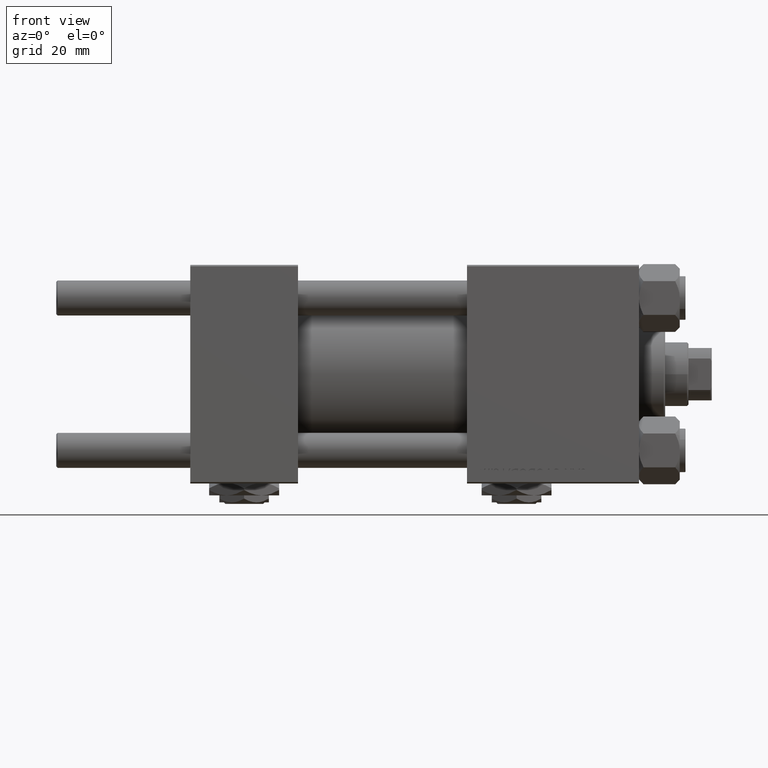
[diagram: clean part render]
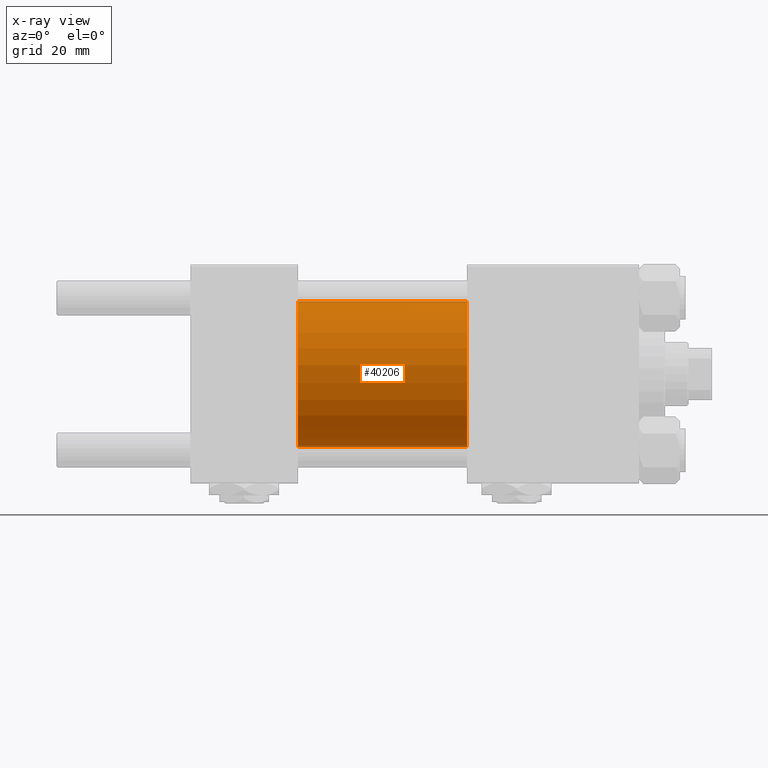
[diagram: x-ray — body ghosted, one internal face saturated and labeled with its STEP entity id]
A machine part, front view, then the same camera in x-ray: the body is ghosted and one INTERNAL B-rep face — a face not visible from any outside direction — is saturated and labeled: STEP entity #40206.
In plain terms, the highlighted cylindrical surface (partial cylindrical patch) has radius 25 mm, axis along (-1, -0, -0).
Its self-contained STEP definition (entity closure, byte-faithful):
#2427 = EDGE_LOOP ( 'NONE', ( #40522, #5990, #18954, #51434 ) ) ;
#5990 = ORIENTED_EDGE ( 'NONE', *, *, #7460, .T. ) ;
#6625 = CARTESIAN_POINT ( 'NONE',  ( 95.00000000000000000, 0.000000000000000000, 25.00000000000000000 ) ) ;
#6922 = CIRCLE ( 'NONE', #44581, 25.00000000000000000 ) ;
#7460 = EDGE_CURVE ( 'NONE', #30177, #29474, #15472, .T. ) ;
#7726 = CARTESIAN_POINT ( 'NONE',  ( 95.00000000000000000, 3.061616997868382254E-15, -25.00000000000000000 ) ) ;
#9707 = DIRECTION ( 'NONE',  ( -1.000000000000000000, -0.000000000000000000, -0.000000000000000000 ) ) ;
#11734 = DIRECTION ( 'NONE',  ( 0.000000000000000000, 0.000000000000000000, -1.000000000000000000 ) ) ;
#11901 = VERTEX_POINT ( 'NONE', #6625 ) ;
#12395 = DIRECTION ( 'NONE',  ( 0.000000000000000000, 0.000000000000000000, 1.000000000000000000 ) ) ;
#15472 = LINE ( 'NONE', #31185, #15995 ) ;
#15578 = CARTESIAN_POINT ( 'NONE',  ( 37.00000000000000000, 0.000000000000000000, 0.000000000000000000 ) ) ;
#15995 = VECTOR ( 'NONE', #46916, 1000.000000000000000 ) ;
#16580 = FACE_OUTER_BOUND ( 'NONE', #2427, .T. ) ;
#18103 = CIRCLE ( 'NONE', #48216, 25.00000000000000000 ) ;
#18954 = ORIENTED_EDGE ( 'NONE', *, *, #27254, .F. ) ;
#22567 = CARTESIAN_POINT ( 'NONE',  ( 95.00000000000000000, 0.000000000000000000, 25.00000000000000000 ) ) ;
#22922 = DIRECTION ( 'NONE',  ( 1.000000000000000000, 0.000000000000000000, 0.000000000000000000 ) ) ;
#27254 = EDGE_CURVE ( 'NONE', #39538, #29474, #18103, .T. ) ;
#29474 = VERTEX_POINT ( 'NONE', #32065 ) ;
#30177 = VERTEX_POINT ( 'NONE', #7726 ) ;
#31185 = CARTESIAN_POINT ( 'NONE',  ( 95.00000000000000000, 3.061616997868382254E-15, -25.00000000000000000 ) ) ;
#31542 = DIRECTION ( 'NONE',  ( 0.000000000000000000, 0.000000000000000000, -1.000000000000000000 ) ) ;
#32065 = CARTESIAN_POINT ( 'NONE',  ( 37.00000000000000000, 3.061616997868382254E-15, -25.00000000000000000 ) ) ;
#34356 = LINE ( 'NONE', #22567, #35920 ) ;
#35920 = VECTOR ( 'NONE', #38560, 1000.000000000000000 ) ;
#38560 = DIRECTION ( 'NONE',  ( -1.000000000000000000, -0.000000000000000000, -0.000000000000000000 ) ) ;
#38612 = EDGE_CURVE ( 'NONE', #11901, #39538, #34356, .T. ) ;
#39538 = VERTEX_POINT ( 'NONE', #41532 ) ;
#39773 = CARTESIAN_POINT ( 'NONE',  ( 95.00000000000000000, 0.000000000000000000, 0.000000000000000000 ) ) ;
#40206 = ADVANCED_FACE ( 'NONE', ( #16580 ), #48031, .F. ) ;
#40522 = ORIENTED_EDGE ( 'NONE', *, *, #50912, .T. ) ;
#41532 = CARTESIAN_POINT ( 'NONE',  ( 37.00000000000000000, 0.000000000000000000, 25.00000000000000000 ) ) ;
#44581 = AXIS2_PLACEMENT_3D ( 'NONE', #39773, #47376, #11734 ) ;
#45585 = CARTESIAN_POINT ( 'NONE',  ( 95.00000000000000000, 0.000000000000000000, 0.000000000000000000 ) ) ;
#46916 = DIRECTION ( 'NONE',  ( -1.000000000000000000, -0.000000000000000000, -0.000000000000000000 ) ) ;
#47376 = DIRECTION ( 'NONE',  ( 1.000000000000000000, 0.000000000000000000, 0.000000000000000000 ) ) ;
#48031 = CYLINDRICAL_SURFACE ( 'NONE', #50182, 25.00000000000000000 ) ;
#48216 = AXIS2_PLACEMENT_3D ( 'NONE', #15578, #22922, #31542 ) ;
#50182 = AXIS2_PLACEMENT_3D ( 'NONE', #45585, #9707, #12395 ) ;
#50912 = EDGE_CURVE ( 'NONE', #11901, #30177, #6922, .T. ) ;
#51434 = ORIENTED_EDGE ( 'NONE', *, *, #38612, .F. ) ;